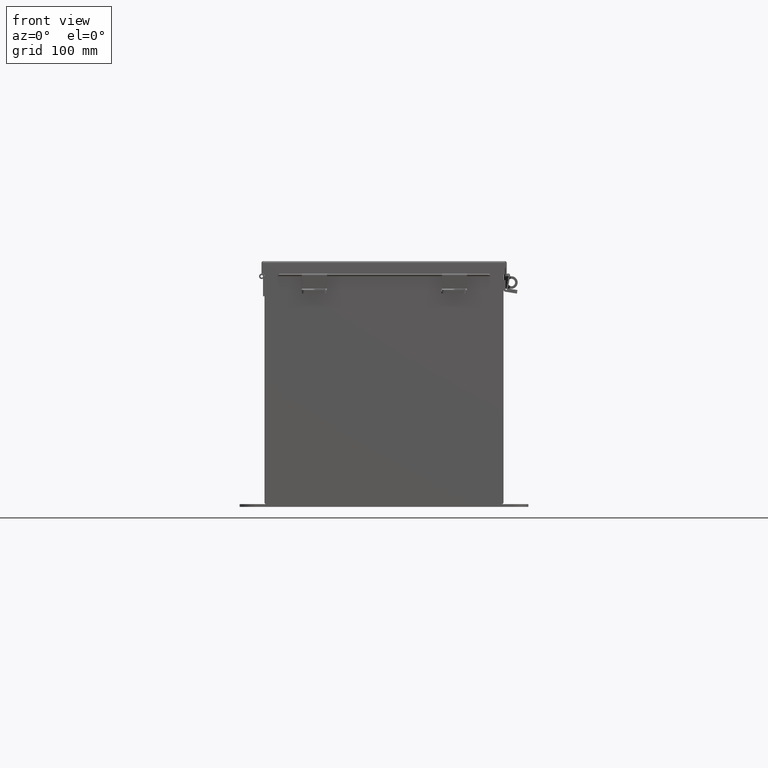
[diagram: clean part render]
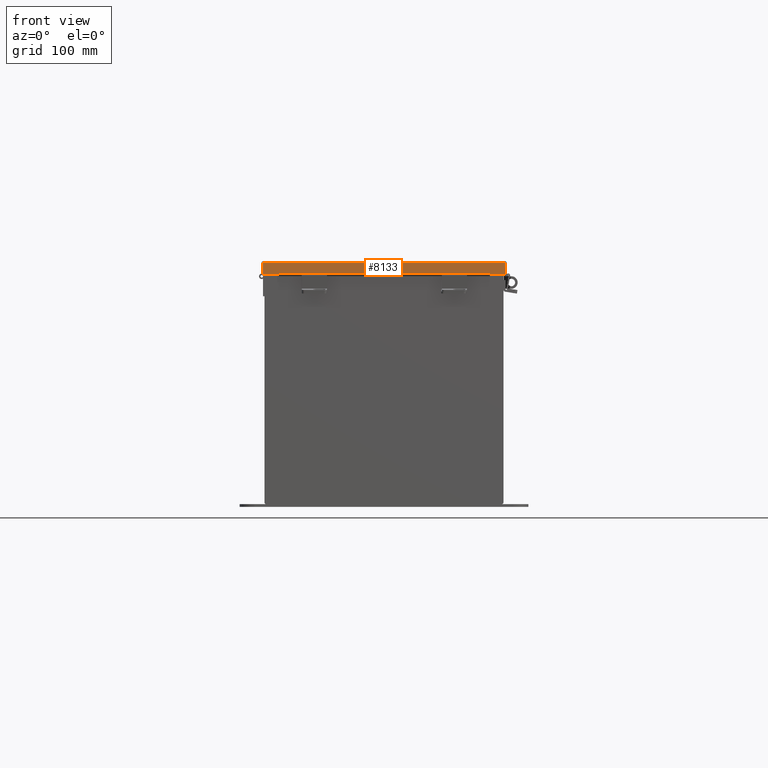
[diagram: same view with one face highlighted and labeled with its STEP entity id]
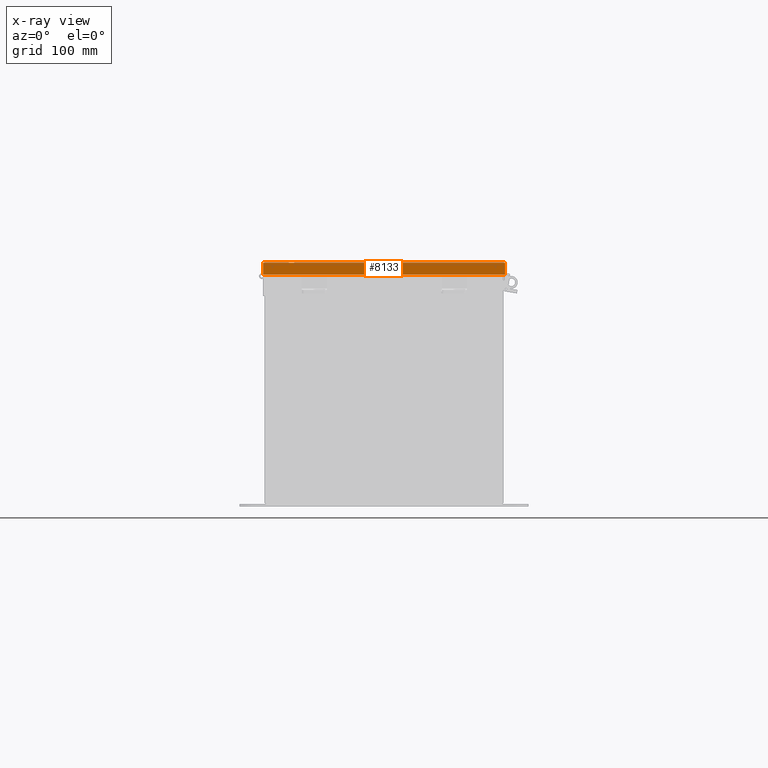
[diagram: x-ray of the same camera — body ghosted, the highlighted face saturated]
A machine part, front view. The second image highlights one B-rep face of the part: STEP entity #8133.
The next image is the same camera in x-ray: the body ghosted, the highlighted face saturated — about 0% of this face is hidden behind the body in this view.
In plain terms, the highlighted planar face has unit normal (0, 1, -0).
Its self-contained STEP definition (entity closure, byte-faithful):
#198 = CARTESIAN_POINT ( 'NONE',  ( -6.074478932188134700, -15.15625000000000200, 0.6123000000000005100 ) ) ;
#439 = DIRECTION ( 'NONE',  ( -1.000000000000000000, -2.123597175838010500E-030, -0.0000000000000000000 ) ) ;
#786 = CARTESIAN_POINT ( 'NONE',  ( -6.156249999999997300, -15.15625000000000000, 0.01300000000000010700 ) ) ;
#1209 = VECTOR ( 'NONE', #12269, 39.37007874015748100 ) ;
#1341 = EDGE_CURVE ( 'NONE', #21611, #18537, #25793, .T. ) ;
#1376 = VECTOR ( 'NONE', #19360, 39.37007874015748100 ) ;
#1615 = ORIENTED_EDGE ( 'NONE', *, *, #13643, .F. ) ;
#1967 = CARTESIAN_POINT ( 'NONE',  ( 6.074478932188137400, -15.15625000000000000, 0.01300000000000010700 ) ) ;
#2032 = LINE ( 'NONE', #17364, #1376 ) ;
#2541 = EDGE_CURVE ( 'NONE', #17551, #10943, #23507, .T. ) ;
#3091 = VERTEX_POINT ( 'NONE', #1967 ) ;
#4276 = LINE ( 'NONE', #13042, #1209 ) ;
#4458 = CARTESIAN_POINT ( 'NONE',  ( 5.324478932188137400, -15.15625000000000200, 0.6123000000000005100 ) ) ;
#4482 = VECTOR ( 'NONE', #20541, 39.37007874015748100 ) ;
#4993 = ORIENTED_EDGE ( 'NONE', *, *, #13188, .F. ) ;
#5394 = PLANE ( 'NONE',  #6974 ) ;
#5686 = ORIENTED_EDGE ( 'NONE', *, *, #15189, .T. ) ;
#6974 = AXIS2_PLACEMENT_3D ( 'NONE', #17672, #19408, #7940 ) ;
#7492 = VERTEX_POINT ( 'NONE', #15970 ) ;
#7940 = DIRECTION ( 'NONE',  ( 0.0000000000000000000, -3.569293475308517400E-015, 1.000000000000000000 ) ) ;
#8055 = ORIENTED_EDGE ( 'NONE', *, *, #16272, .F. ) ;
#8133 = ADVANCED_FACE ( 'NONE', ( #12936 ), #5394, .F. ) ;
#8899 = VECTOR ( 'NONE', #12839, 39.37007874015748100 ) ;
#9197 = CARTESIAN_POINT ( 'NONE',  ( -5.324478932188134700, -15.15625000000000500, 0.5967115427318804300 ) ) ;
#9384 = EDGE_LOOP ( 'NONE', ( #4993, #25005, #12665, #1615, #5686, #14468, #8055, #18669 ) ) ;
#10327 = VERTEX_POINT ( 'NONE', #4458 ) ;
#10535 = CARTESIAN_POINT ( 'NONE',  ( 5.324478932188136500, -15.15625000000000200, 0.5967115427318804300 ) ) ;
#10943 = VERTEX_POINT ( 'NONE', #10535 ) ;
#10958 = CARTESIAN_POINT ( 'NONE',  ( -1.707404996040164500E-017, -15.15625000000000200, 0.6123000000000005100 ) ) ;
#11452 = VERTEX_POINT ( 'NONE', #15659 ) ;
#12269 = DIRECTION ( 'NONE',  ( 7.009925220121392600E-014, -1.401985044024278500E-013, -1.000000000000000000 ) ) ;
#12665 = ORIENTED_EDGE ( 'NONE', *, *, #1341, .F. ) ;
#12839 = DIRECTION ( 'NONE',  ( 0.0000000000000000000, 1.401985044024247700E-013, 1.000000000000000000 ) ) ;
#12936 = FACE_OUTER_BOUND ( 'NONE', #9384, .T. ) ;
#13042 = CARTESIAN_POINT ( 'NONE',  ( -5.324478932188134700, -15.15625000000000400, 0.6122999999999982900 ) ) ;
#13188 = EDGE_CURVE ( 'NONE', #7492, #17551, #4276, .T. ) ;
#13643 = EDGE_CURVE ( 'NONE', #3091, #21611, #20589, .T. ) ;
#14040 = LINE ( 'NONE', #21389, #24697 ) ;
#14468 = ORIENTED_EDGE ( 'NONE', *, *, #20727, .T. ) ;
#14980 = DIRECTION ( 'NONE',  ( -1.000000000000000000, -2.172320382864645000E-030, 5.546899479520645900E-018 ) ) ;
#15189 = EDGE_CURVE ( 'NONE', #3091, #11452, #2032, .T. ) ;
#15276 = VECTOR ( 'NONE', #439, 39.37007874015748100 ) ;
#15659 = CARTESIAN_POINT ( 'NONE',  ( 6.074478932188137400, -15.15625000000000200, 0.6123000000000005100 ) ) ;
#15970 = CARTESIAN_POINT ( 'NONE',  ( -5.324478932188134700, -15.15625000000000200, 0.6123000000000005100 ) ) ;
#16272 = EDGE_CURVE ( 'NONE', #10943, #10327, #24204, .T. ) ;
#17364 = CARTESIAN_POINT ( 'NONE',  ( 6.074478932188137400, -15.15625000000000000, -5.463695987328526600E-014 ) ) ;
#17452 = DIRECTION ( 'NONE',  ( -1.000000000000000000, -2.172320382864645000E-030, 5.546899479520645900E-018 ) ) ;
#17551 = VERTEX_POINT ( 'NONE', #23618 ) ;
#17672 = CARTESIAN_POINT ( 'NONE',  ( 0.0000000000000000000, -15.15625000000000000, -5.463695987328526600E-014 ) ) ;
#17792 = VECTOR ( 'NONE', #14980, 39.37007874015748100 ) ;
#18423 = LINE ( 'NONE', #10958, #17792 ) ;
#18537 = VERTEX_POINT ( 'NONE', #198 ) ;
#18669 = ORIENTED_EDGE ( 'NONE', *, *, #2541, .F. ) ;
#18835 = VECTOR ( 'NONE', #19913, 39.37007874015748100 ) ;
#19360 = DIRECTION ( 'NONE',  ( 0.0000000000000000000, -3.569293475308517400E-015, 1.000000000000000000 ) ) ;
#19408 = DIRECTION ( 'NONE',  ( 2.175156050742650700E-030, 1.000000000000000000, 3.569293475308517400E-015 ) ) ;
#19913 = DIRECTION ( 'NONE',  ( 1.000000000000000000, 2.172900982414323700E-030, -0.0000000000000000000 ) ) ;
#20451 = EDGE_CURVE ( 'NONE', #7492, #18537, #14040, .T. ) ;
#20541 = DIRECTION ( 'NONE',  ( -0.0000000000000000000, -3.569293475308517400E-015, 1.000000000000000000 ) ) ;
#20589 = LINE ( 'NONE', #786, #15276 ) ;
#20727 = EDGE_CURVE ( 'NONE', #11452, #10327, #18423, .T. ) ;
#21389 = CARTESIAN_POINT ( 'NONE',  ( -1.707404996040164500E-017, -15.15625000000000200, 0.6123000000000005100 ) ) ;
#21611 = VERTEX_POINT ( 'NONE', #23926 ) ;
#23507 = LINE ( 'NONE', #9197, #18835 ) ;
#23618 = CARTESIAN_POINT ( 'NONE',  ( -5.324478932188133000, -15.15625000000000200, 0.5967115427318804300 ) ) ;
#23926 = CARTESIAN_POINT ( 'NONE',  ( -6.074478932188134700, -15.15625000000000000, 0.01300000000000010700 ) ) ;
#24204 = LINE ( 'NONE', #24826, #8899 ) ;
#24220 = CARTESIAN_POINT ( 'NONE',  ( -6.074478932188134700, -15.15625000000000000, 0.0000000000000000000 ) ) ;
#24697 = VECTOR ( 'NONE', #17452, 39.37007874015748100 ) ;
#24826 = CARTESIAN_POINT ( 'NONE',  ( 5.324478932188136500, -15.15625000000000500, 0.5967115427318804300 ) ) ;
#25005 = ORIENTED_EDGE ( 'NONE', *, *, #20451, .T. ) ;
#25793 = LINE ( 'NONE', #24220, #4482 ) ;